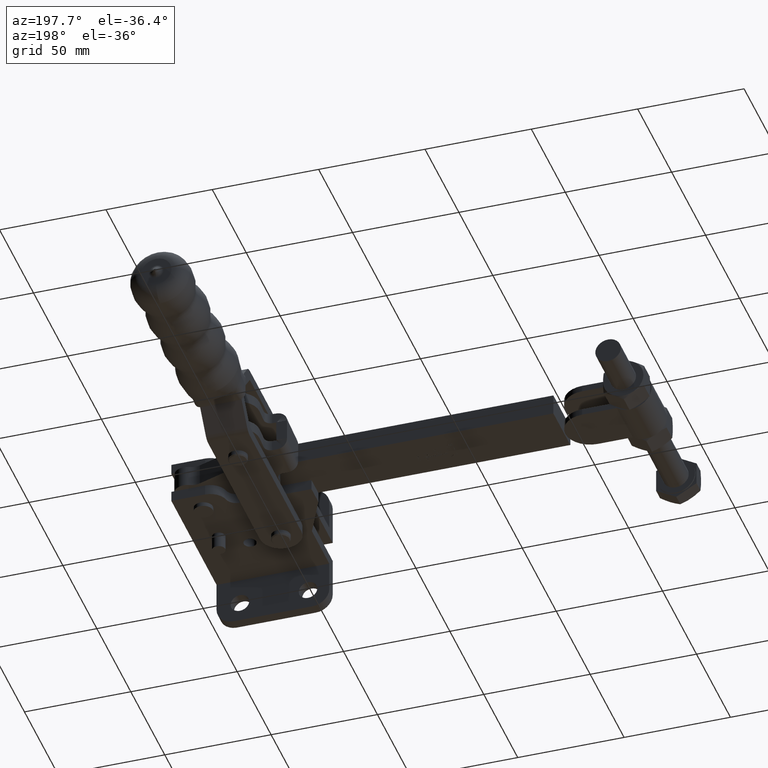
[diagram: clean part render]
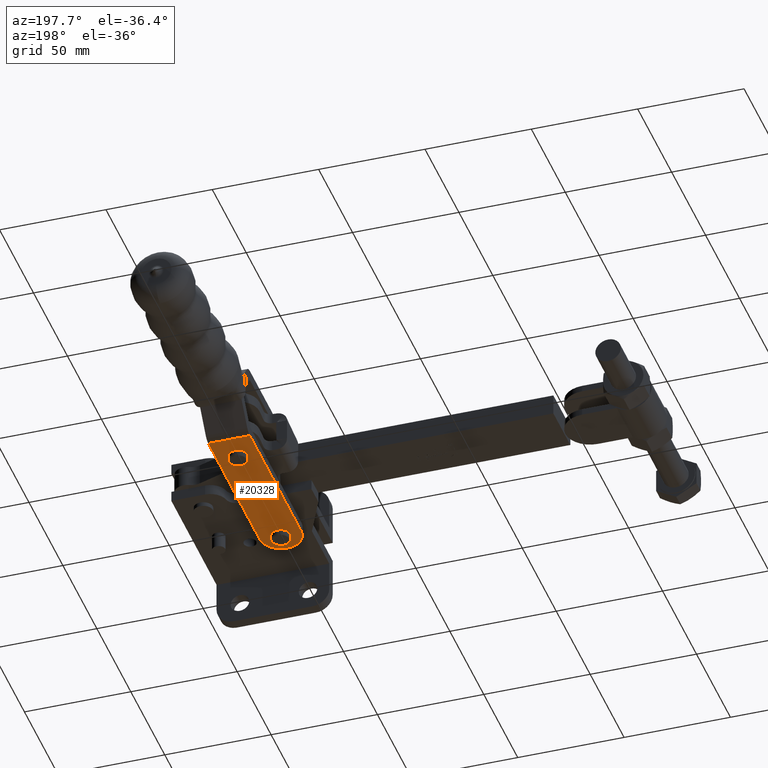
[diagram: same view with one face highlighted and labeled with its STEP entity id]
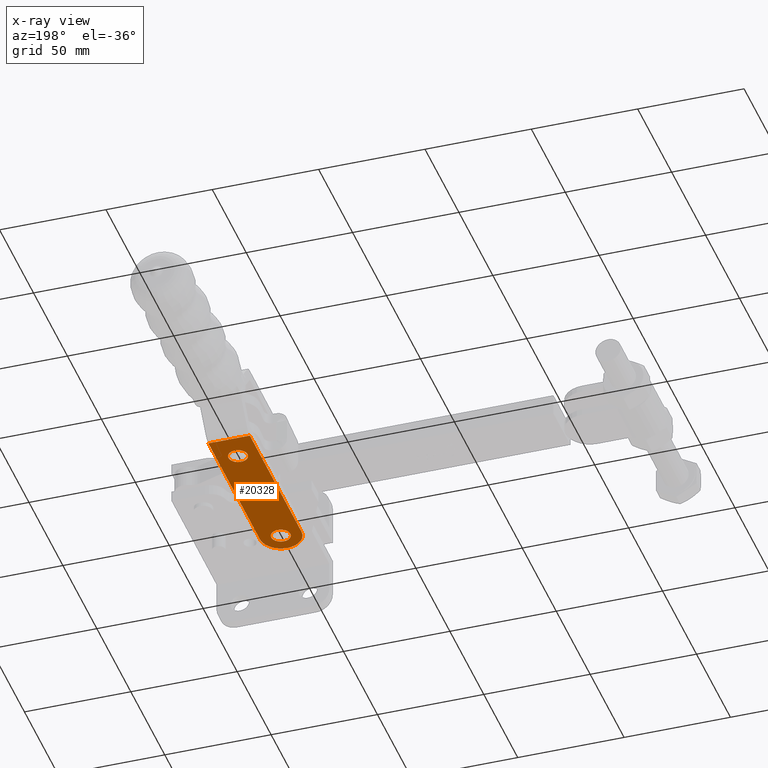
[diagram: x-ray of the same camera — body ghosted, the highlighted face saturated]
A machine part, auxiliary view. The second image highlights one B-rep face of the part: STEP entity #20328.
The next image is the same camera in x-ray: the body ghosted, the highlighted face saturated — about 0% of this face is hidden behind the body in this view.
In plain terms, the highlighted planar face has unit normal (-0, -0, 1).
Its self-contained STEP definition (entity closure, byte-faithful):
#87 = CIRCLE ( 'NONE', #11150, 4.489999999999994000 ) ;
#171 = LINE ( 'NONE', #22959, #20292 ) ;
#540 = EDGE_LOOP ( 'NONE', ( #20598, #6622, #11987, #21891 ) ) ;
#747 = DIRECTION ( 'NONE',  ( -2.001903344671601400E-005, -0.9999999997996190700, -9.188598164487615600E-017 ) ) ;
#1028 = DIRECTION ( 'NONE',  ( -3.284444282023644100E-017, -9.188532414928882900E-017, 1.000000000000000000 ) ) ;
#1166 = EDGE_CURVE ( 'NONE', #19607, #4037, #5515, .T. ) ;
#1348 = EDGE_LOOP ( 'NONE', ( #15891, #20406 ) ) ;
#2128 = DIRECTION ( 'NONE',  ( 0.0000000000000000000, -1.000000000000000000, 0.0000000000000000000 ) ) ;
#2967 = DIRECTION ( 'NONE',  ( 3.284444282023644100E-017, 9.188532414928882900E-017, -1.000000000000000000 ) ) ;
#3121 = EDGE_CURVE ( 'NONE', #16862, #22724, #6557, .T. ) ;
#3172 = EDGE_CURVE ( 'NONE', #11802, #17647, #171, .T. ) ;
#3205 = AXIS2_PLACEMENT_3D ( 'NONE', #7548, #2967, #2128 ) ;
#3434 = DIRECTION ( 'NONE',  ( -2.001903344671601400E-005, -0.9999999997996190700, -9.188598164487615600E-017 ) ) ;
#3440 = ORIENTED_EDGE ( 'NONE', *, *, #21441, .T. ) ;
#3799 = EDGE_CURVE ( 'NONE', #4778, #22699, #8707, .T. ) ;
#3859 = CARTESIAN_POINT ( 'NONE',  ( -41.99999999999921100, 67.35071213382562400, -17.99999999999998600 ) ) ;
#4037 = VERTEX_POINT ( 'NONE', #11597 ) ;
#4778 = VERTEX_POINT ( 'NONE', #11631 ) ;
#5277 = LINE ( 'NONE', #6122, #11086 ) ;
#5515 = CIRCLE ( 'NONE', #3205, 4.489999999999994000 ) ;
#5793 = DIRECTION ( 'NONE',  ( 2.001903344661942900E-005, 0.9999999997996190700, 0.0000000000000000000 ) ) ;
#5932 = DIRECTION ( 'NONE',  ( 3.284444282023644100E-017, 9.188532414928882900E-017, -1.000000000000000000 ) ) ;
#6122 = CARTESIAN_POINT ( 'NONE',  ( -51.74847502080158500, 143.5272745584997000, -17.99999999999998200 ) ) ;
#6557 = CIRCLE ( 'NONE', #10307, 4.489999999999994000 ) ;
#6622 = ORIENTED_EDGE ( 'NONE', *, *, #12249, .T. ) ;
#7548 = CARTESIAN_POINT ( 'NONE',  ( -41.99873880089284500, 130.3507121212008100, -18.00000000000001400 ) ) ;
#8103 = DIRECTION ( 'NONE',  ( 0.9999999997996190700, -2.001903344677141700E-005, 3.284260335827759600E-017 ) ) ;
#8126 = AXIS2_PLACEMENT_3D ( 'NONE', #17629, #5932, #19584 ) ;
#8707 = LINE ( 'NONE', #16366, #23667 ) ;
#10307 = AXIS2_PLACEMENT_3D ( 'NONE', #20800, #15001, #18953 ) ;
#10454 = EDGE_CURVE ( 'NONE', #11802, #4778, #5277, .T. ) ;
#11028 = PLANE ( 'NONE',  #19629 ) ;
#11086 = VECTOR ( 'NONE', #8103, 1000.000000000000100 ) ;
#11110 = DIRECTION ( 'NONE',  ( 2.001903344671601400E-005, 0.9999999997996190700, 9.188598164487613100E-017 ) ) ;
#11150 = AXIS2_PLACEMENT_3D ( 'NONE', #12715, #1028, #14673 ) ;
#11258 = EDGE_CURVE ( 'NONE', #4037, #19607, #24162, .T. ) ;
#11597 = CARTESIAN_POINT ( 'NONE',  ( -46.48873880089284700, 130.3507121212008100, -18.00000000000001400 ) ) ;
#11631 = CARTESIAN_POINT ( 'NONE',  ( -32.24847502470900900, 143.5268841873474900, -17.99999999999998200 ) ) ;
#11802 = VERTEX_POINT ( 'NONE', #11819 ) ;
#11819 = CARTESIAN_POINT ( 'NONE',  ( -51.74847502080158500, 143.5272745584997000, -17.99999999999998200 ) ) ;
#11987 = ORIENTED_EDGE ( 'NONE', *, *, #3172, .F. ) ;
#12249 = EDGE_CURVE ( 'NONE', #22699, #17647, #24444, .T. ) ;
#12715 = CARTESIAN_POINT ( 'NONE',  ( -42.00000000000000700, 67.35071213382478600, -18.00000000000001400 ) ) ;
#12981 = CARTESIAN_POINT ( 'NONE',  ( -51.74842850391993200, 145.8509073036718700, -17.99999999999998200 ) ) ;
#13671 = AXIS2_PLACEMENT_3D ( 'NONE', #3859, #17503, #5793 ) ;
#14673 = DIRECTION ( 'NONE',  ( 0.0000000000000000000, -1.000000000000000000, 0.0000000000000000000 ) ) ;
#14968 = CARTESIAN_POINT ( 'NONE',  ( -37.51000000000000500, 67.35071213382478600, -18.00000000000001400 ) ) ;
#15001 = DIRECTION ( 'NONE',  ( -3.284444282023644100E-017, -9.188532414928882900E-017, 1.000000000000000000 ) ) ;
#15070 = FACE_OUTER_BOUND ( 'NONE', #540, .T. ) ;
#15891 = ORIENTED_EDGE ( 'NONE', *, *, #1166, .F. ) ;
#16366 = CARTESIAN_POINT ( 'NONE',  ( -32.24842850782735600, 145.8505169325196700, -17.99999999999998200 ) ) ;
#16862 = VERTEX_POINT ( 'NONE', #17906 ) ;
#17503 = DIRECTION ( 'NONE',  ( 3.284444282023644100E-017, 9.188532414928882900E-017, -1.000000000000000000 ) ) ;
#17629 = CARTESIAN_POINT ( 'NONE',  ( -41.99873880089284500, 130.3507121212008100, -18.00000000000001400 ) ) ;
#17647 = VERTEX_POINT ( 'NONE', #18565 ) ;
#17906 = CARTESIAN_POINT ( 'NONE',  ( -46.49000000000000900, 67.35071213382478600, -18.00000000000001400 ) ) ;
#18565 = CARTESIAN_POINT ( 'NONE',  ( -51.74999999804549600, 67.35090731940174200, -17.99999999999998900 ) ) ;
#18953 = DIRECTION ( 'NONE',  ( 0.0000000000000000000, -1.000000000000000000, 0.0000000000000000000 ) ) ;
#19584 = DIRECTION ( 'NONE',  ( 0.0000000000000000000, -1.000000000000000000, 0.0000000000000000000 ) ) ;
#19607 = VERTEX_POINT ( 'NONE', #24473 ) ;
#19629 = AXIS2_PLACEMENT_3D ( 'NONE', #12981, #22806, #11110 ) ;
#20255 = FACE_BOUND ( 'NONE', #1348, .T. ) ;
#20292 = VECTOR ( 'NONE', #3434, 1000.000000000000100 ) ;
#20328 = ADVANCED_FACE ( 'NONE', ( #24892, #20255, #15070 ), #11028, .F. ) ;
#20406 = ORIENTED_EDGE ( 'NONE', *, *, #11258, .F. ) ;
#20598 = ORIENTED_EDGE ( 'NONE', *, *, #3799, .T. ) ;
#20800 = CARTESIAN_POINT ( 'NONE',  ( -42.00000000000000700, 67.35071213382478600, -18.00000000000001400 ) ) ;
#21441 = EDGE_CURVE ( 'NONE', #22724, #16862, #87, .T. ) ;
#21736 = EDGE_LOOP ( 'NONE', ( #3440, #24552 ) ) ;
#21891 = ORIENTED_EDGE ( 'NONE', *, *, #10454, .T. ) ;
#22668 = CARTESIAN_POINT ( 'NONE',  ( -32.25000000195292700, 67.35051694824953500, -17.99999999999998600 ) ) ;
#22699 = VERTEX_POINT ( 'NONE', #22668 ) ;
#22724 = VERTEX_POINT ( 'NONE', #14968 ) ;
#22806 = DIRECTION ( 'NONE',  ( -3.284444282023644100E-017, -9.188532414928885400E-017, 1.000000000000000000 ) ) ;
#22959 = CARTESIAN_POINT ( 'NONE',  ( -51.74842850391993200, 145.8509073036718700, -17.99999999999998200 ) ) ;
#23667 = VECTOR ( 'NONE', #747, 1000.000000000000100 ) ;
#24162 = CIRCLE ( 'NONE', #8126, 4.489999999999994000 ) ;
#24444 = CIRCLE ( 'NONE', #13671, 9.750000000000007100 ) ;
#24473 = CARTESIAN_POINT ( 'NONE',  ( -37.50873880089284300, 130.3507121212008100, -18.00000000000001400 ) ) ;
#24552 = ORIENTED_EDGE ( 'NONE', *, *, #3121, .T. ) ;
#24892 = FACE_BOUND ( 'NONE', #21736, .T. ) ;